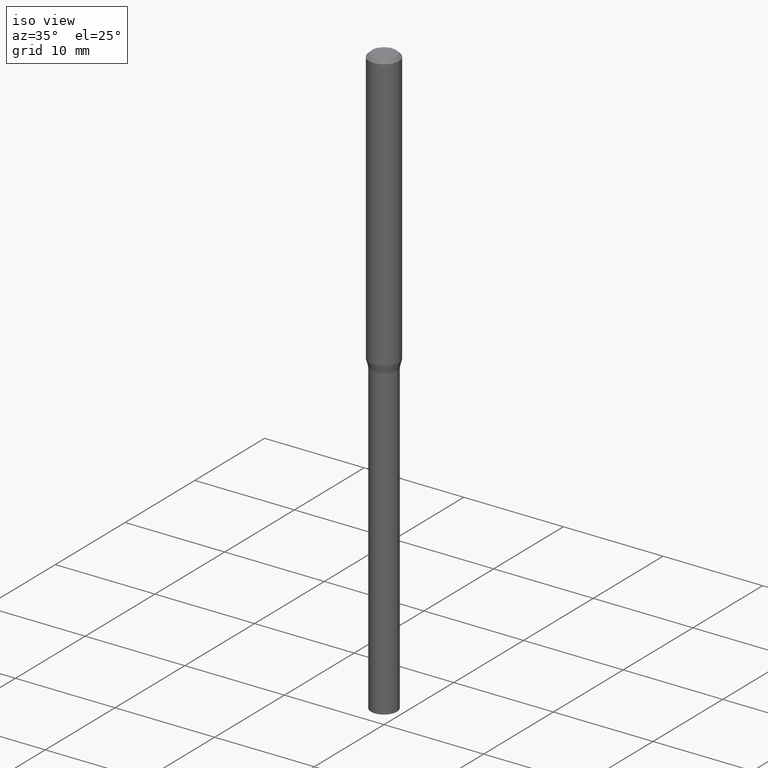
[diagram: clean part render]
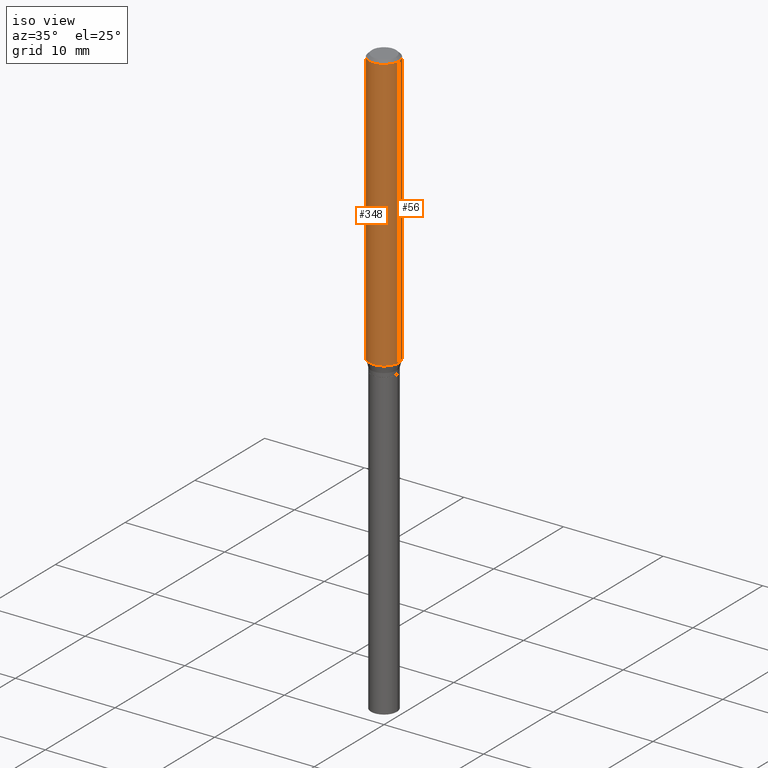
[diagram: same view with one multi-face feature highlighted, each face labeled with its STEP entity id]
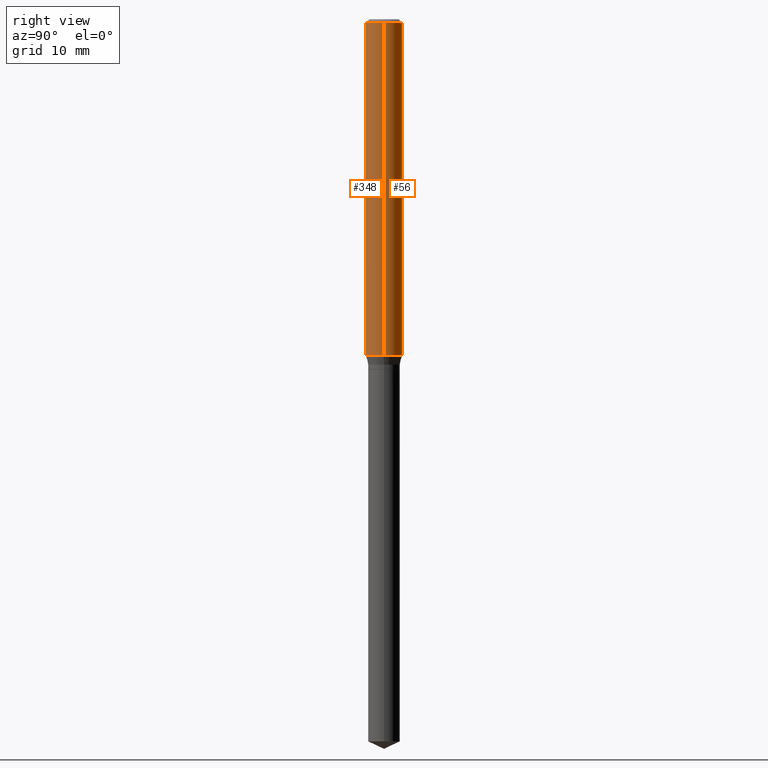
[diagram: same view with one multi-face feature highlighted, each face labeled with its STEP entity id]
A machine part, iso view. The highlighted faces form ONE feature: a constant-radius fillet chain: 2 tangent blend faces with common blend radius 1.4999 mm. The faces share edges in the B-rep.
A second angle (right view) of the same feature is appended — it is thin or edge-on in the first view.
Their STEP definitions:
[1] entity #348 (Cylinder):
#2 = VECTOR ( 'NONE', #305, 39.37007874015748143 ) ;
#26 = DIRECTION ( 'NONE',  ( -2.445468806185136597E-29, 3.491481338843145583E-15, 1.000000000000000000 ) ) ;
#79 = ORIENTED_EDGE ( 'NONE', *, *, #388, .F. ) ;
#81 = VERTEX_POINT ( 'NONE', #357 ) ;
#83 = EDGE_LOOP ( 'NONE', ( #370, #440, #297, #79 ) ) ;
#93 = LINE ( 'NONE', #198, #188 ) ;
#132 = CARTESIAN_POINT ( 'NONE',  ( 0.000000000000000000, 0.000000000000000000, 0.000000000000000000 ) ) ;
#151 = CIRCLE ( 'NONE', #423, 0.05905000000000000526 ) ;
#162 = CARTESIAN_POINT ( 'NONE',  ( -0.05905000000000000526, -1.502508386517860213E-15, -0.01181000000000007738 ) ) ;
#175 = EDGE_CURVE ( 'NONE', #309, #408, #284, .T. ) ;
#188 = VECTOR ( 'NONE', #217, 39.37007874015748143 ) ;
#195 = VERTEX_POINT ( 'NONE', #273 ) ;
#198 = CARTESIAN_POINT ( 'NONE',  ( 0.05905000000000006771, -4.123439461173745257E-16, 2.879382386107503723E-30 ) ) ;
#199 = CIRCLE ( 'NONE', #318, 0.05905000000000013710 ) ;
#217 = DIRECTION ( 'NONE',  ( -2.445468806185136877E-29, 3.491481338843145188E-15, 1.000000000000000000 ) ) ;
#228 = EDGE_CURVE ( 'NONE', #81, #195, #93, .T. ) ;
#229 = DIRECTION ( 'NONE',  ( 1.000000000000000000, -6.982962677686266711E-15, 4.876176775795936353E-29 ) ) ;
#230 = CARTESIAN_POINT ( 'NONE',  ( 2.663612941128963987E-29, -3.802933349356663262E-15, -1.089203401160584006 ) ) ;
#264 = DIRECTION ( 'NONE',  ( 1.000000000000000000, -6.982962677686267499E-15, 0.000000000000000000 ) ) ;
#270 = DIRECTION ( 'NONE',  ( -2.445468806185136597E-29, 3.491481338843145583E-15, 1.000000000000000000 ) ) ;
#273 = CARTESIAN_POINT ( 'NONE',  ( 0.05905000000000000526, -4.535783407291119586E-16, -0.01181000000000007738 ) ) ;
#284 = LINE ( 'NONE', #397, #2 ) ;
#297 = ORIENTED_EDGE ( 'NONE', *, *, #228, .T. ) ;
#305 = DIRECTION ( 'NONE',  ( -2.445468806185136877E-29, 3.491481338843145188E-15, 1.000000000000000000 ) ) ;
#309 = VERTEX_POINT ( 'NONE', #454 ) ;
#318 = AXIS2_PLACEMENT_3D ( 'NONE', #230, #26, #340 ) ;
#333 = DIRECTION ( 'NONE',  ( -2.445468806185136597E-29, 3.491481338843145583E-15, 1.000000000000000000 ) ) ;
#340 = DIRECTION ( 'NONE',  ( 1.000000000000000000, -6.982962677686264344E-15, 0.000000000000000000 ) ) ;
#348 = ADVANCED_FACE ( 'NONE', ( #466 ), #436, .T. ) ;
#357 = CARTESIAN_POINT ( 'NONE',  ( 0.05905000000000013710, -4.215277295474038182E-15, -1.089203401160584006 ) ) ;
#370 = ORIENTED_EDGE ( 'NONE', *, *, #175, .F. ) ;
#375 = CARTESIAN_POINT ( 'NONE',  ( 2.888098660104665518E-31, -4.123439461173782112E-17, -0.01181000000000007738 ) ) ;
#386 = AXIS2_PLACEMENT_3D ( 'NONE', #132, #333, #229 ) ;
#388 = EDGE_CURVE ( 'NONE', #408, #195, #151, .T. ) ;
#397 = CARTESIAN_POINT ( 'NONE',  ( -0.05905000000000006771, 4.195754854663396409E-16, -2.904631170795525045E-30 ) ) ;
#408 = VERTEX_POINT ( 'NONE', #162 ) ;
#423 = AXIS2_PLACEMENT_3D ( 'NONE', #375, #270, #264 ) ;
#436 = CYLINDRICAL_SURFACE ( 'NONE', #386, 0.05905000000000006771 ) ;
#440 = ORIENTED_EDGE ( 'NONE', *, *, #465, .T. ) ;
#454 = CARTESIAN_POINT ( 'NONE',  ( -0.05905000000000013710, -3.383357863890323374E-15, -1.089203401160584006 ) ) ;
#465 = EDGE_CURVE ( 'NONE', #309, #81, #199, .T. ) ;
#466 = FACE_OUTER_BOUND ( 'NONE', #83, .T. ) ;
[2] entity #56 (Cylinder):
#2 = VECTOR ( 'NONE', #305, 39.37007874015748143 ) ;
#5 = CARTESIAN_POINT ( 'NONE',  ( 0.000000000000000000, 0.000000000000000000, 0.000000000000000000 ) ) ;
#41 = CARTESIAN_POINT ( 'NONE',  ( 2.888098660104665518E-31, -4.123439461173782112E-17, -0.01181000000000007738 ) ) ;
#56 = ADVANCED_FACE ( 'NONE', ( #455 ), #121, .T. ) ;
#61 = CIRCLE ( 'NONE', #92, 0.05905000000000013710 ) ;
#80 = EDGE_CURVE ( 'NONE', #195, #408, #109, .T. ) ;
#81 = VERTEX_POINT ( 'NONE', #357 ) ;
#92 = AXIS2_PLACEMENT_3D ( 'NONE', #180, #339, #300 ) ;
#93 = LINE ( 'NONE', #198, #188 ) ;
#109 = CIRCLE ( 'NONE', #467, 0.05905000000000000526 ) ;
#121 = CYLINDRICAL_SURFACE ( 'NONE', #471, 0.05905000000000006771 ) ;
#162 = CARTESIAN_POINT ( 'NONE',  ( -0.05905000000000000526, -1.502508386517860213E-15, -0.01181000000000007738 ) ) ;
#163 = DIRECTION ( 'NONE',  ( -2.445468806185136597E-29, 3.491481338843145583E-15, 1.000000000000000000 ) ) ;
#175 = EDGE_CURVE ( 'NONE', #309, #408, #284, .T. ) ;
#180 = CARTESIAN_POINT ( 'NONE',  ( 2.663612941128963987E-29, -3.802933349356663262E-15, -1.089203401160584006 ) ) ;
#188 = VECTOR ( 'NONE', #217, 39.37007874015748143 ) ;
#195 = VERTEX_POINT ( 'NONE', #273 ) ;
#198 = CARTESIAN_POINT ( 'NONE',  ( 0.05905000000000006771, -4.123439461173745257E-16, 2.879382386107503723E-30 ) ) ;
#213 = DIRECTION ( 'NONE',  ( -2.445468806185136597E-29, 3.491481338843145583E-15, 1.000000000000000000 ) ) ;
#217 = DIRECTION ( 'NONE',  ( -2.445468806185136877E-29, 3.491481338843145188E-15, 1.000000000000000000 ) ) ;
#228 = EDGE_CURVE ( 'NONE', #81, #195, #93, .T. ) ;
#262 = EDGE_CURVE ( 'NONE', #81, #309, #61, .T. ) ;
#273 = CARTESIAN_POINT ( 'NONE',  ( 0.05905000000000000526, -4.535783407291119586E-16, -0.01181000000000007738 ) ) ;
#277 = DIRECTION ( 'NONE',  ( 1.000000000000000000, -6.982962677686266711E-15, 4.876176775795936353E-29 ) ) ;
#284 = LINE ( 'NONE', #397, #2 ) ;
#300 = DIRECTION ( 'NONE',  ( 1.000000000000000000, -6.982962677686264344E-15, 0.000000000000000000 ) ) ;
#305 = DIRECTION ( 'NONE',  ( -2.445468806185136877E-29, 3.491481338843145188E-15, 1.000000000000000000 ) ) ;
#309 = VERTEX_POINT ( 'NONE', #454 ) ;
#315 = DIRECTION ( 'NONE',  ( 1.000000000000000000, -6.982962677686267499E-15, 0.000000000000000000 ) ) ;
#336 = ORIENTED_EDGE ( 'NONE', *, *, #175, .T. ) ;
#339 = DIRECTION ( 'NONE',  ( -2.445468806185136597E-29, 3.491481338843145583E-15, 1.000000000000000000 ) ) ;
#344 = EDGE_LOOP ( 'NONE', ( #350, #336, #365, #351 ) ) ;
#350 = ORIENTED_EDGE ( 'NONE', *, *, #262, .T. ) ;
#351 = ORIENTED_EDGE ( 'NONE', *, *, #228, .F. ) ;
#357 = CARTESIAN_POINT ( 'NONE',  ( 0.05905000000000013710, -4.215277295474038182E-15, -1.089203401160584006 ) ) ;
#365 = ORIENTED_EDGE ( 'NONE', *, *, #80, .F. ) ;
#397 = CARTESIAN_POINT ( 'NONE',  ( -0.05905000000000006771, 4.195754854663396409E-16, -2.904631170795525045E-30 ) ) ;
#408 = VERTEX_POINT ( 'NONE', #162 ) ;
#454 = CARTESIAN_POINT ( 'NONE',  ( -0.05905000000000013710, -3.383357863890323374E-15, -1.089203401160584006 ) ) ;
#455 = FACE_OUTER_BOUND ( 'NONE', #344, .T. ) ;
#467 = AXIS2_PLACEMENT_3D ( 'NONE', #41, #213, #315 ) ;
#471 = AXIS2_PLACEMENT_3D ( 'NONE', #5, #163, #277 ) ;